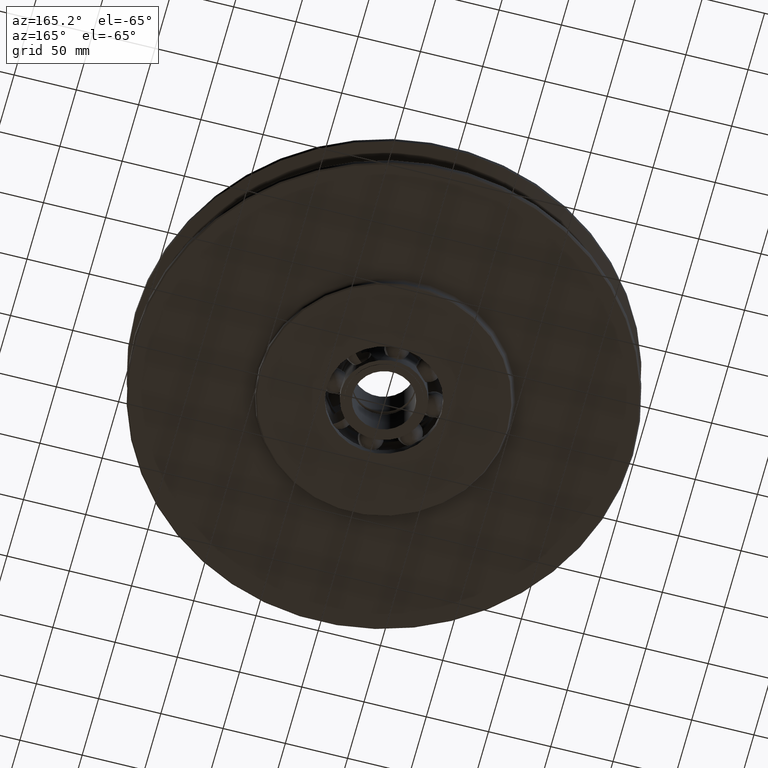
[diagram: clean part render]
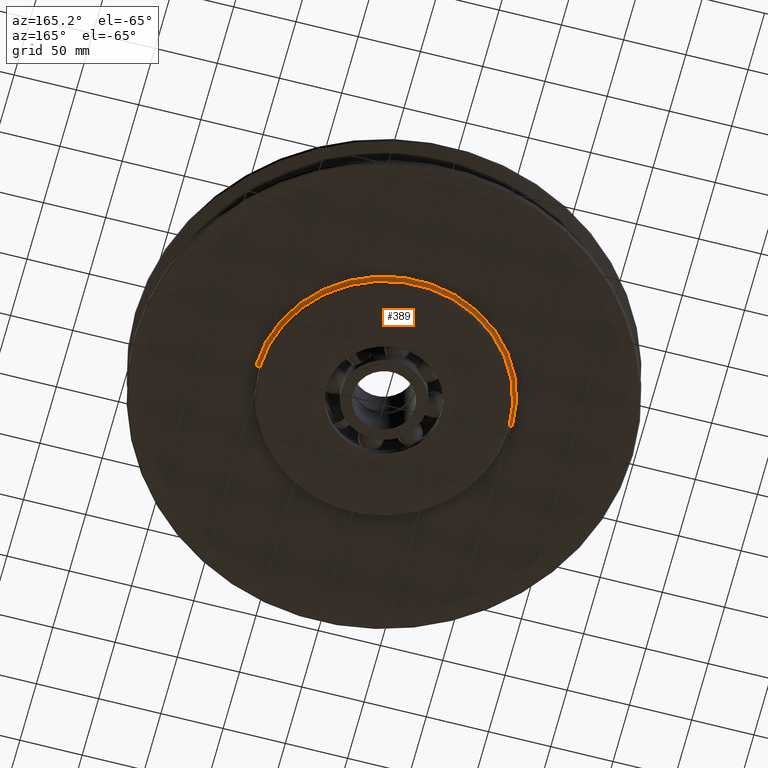
[diagram: same view with one face highlighted and labeled with its STEP entity id]
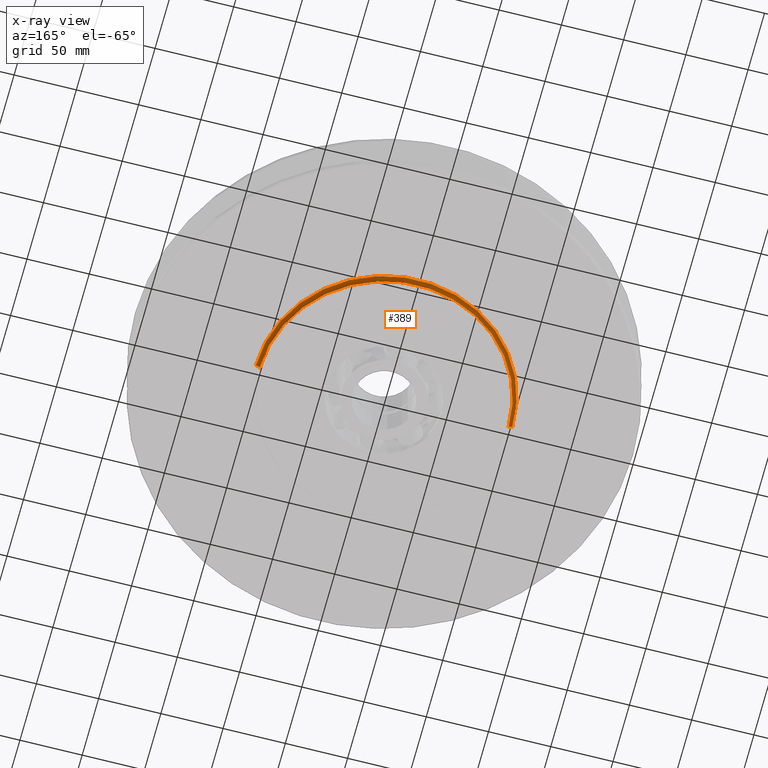
[diagram: x-ray of the same camera — body ghosted, the highlighted face saturated]
A machine part, auxiliary view. The second image highlights one B-rep face of the part: STEP entity #389.
The next image is the same camera in x-ray: the body ghosted, the highlighted face saturated — about 0% of this face is hidden behind the body in this view.
In plain terms, the highlighted toroidal blend (fillet) surface has major radius 103 mm and minor (blend) radius 3 mm.
Its self-contained STEP definition (entity closure, byte-faithful):
#389=ADVANCED_FACE('',(#801),#802,.F.);
#801=FACE_OUTER_BOUND('',#1211,.T.);
#802=TOROIDAL_SURFACE('',#1212,103.0,2.99999999999999);
#1211=EDGE_LOOP('',(#2507,#2508,#2509,#2510));
#1212=AXIS2_PLACEMENT_3D('',#2511,#2512,#2513);
#2507=ORIENTED_EDGE('',*,*,#2673,.T.);
#2508=ORIENTED_EDGE('',*,*,#3091,.F.);
#2509=ORIENTED_EDGE('',*,*,#2675,.T.);
#2510=ORIENTED_EDGE('',*,*,#2681,.T.);
#2511=CARTESIAN_POINT('',(0.0,0.0,-25.5));
#2512=DIRECTION('',(0.0,0.0,1.0));
#2513=DIRECTION('',(1.0,0.0,0.0));
#2673=EDGE_CURVE('',#3290,#3291,#3292,.T.);
#2675=EDGE_CURVE('',#3295,#3293,#3296,.T.);
#2681=EDGE_CURVE('',#3293,#3290,#3304,.T.);
#3091=EDGE_CURVE('',#3295,#3291,#3908,.T.);
#3290=VERTEX_POINT('',#5331);
#3291=VERTEX_POINT('',#5332);
#3292=CIRCLE('',#5333,2.99999999999999);
#3293=VERTEX_POINT('',#5334);
#3295=VERTEX_POINT('',#5336);
#3296=CIRCLE('',#5337,2.99999999999999);
#3304=CIRCLE('',#5347,100.0);
#3908=CIRCLE('',#9107,103.0);
#5331=CARTESIAN_POINT('',(-100.0,1.22464679914735E-014,-25.5));
#5332=CARTESIAN_POINT('',(-103.0,1.26138620312177E-014,-22.5));
#5333=AXIS2_PLACEMENT_3D('',#9264,#9265,#9266);
#5334=CARTESIAN_POINT('',(100.0,0.0,-25.5));
#5336=CARTESIAN_POINT('',(103.0,0.0,-22.5));
#5337=AXIS2_PLACEMENT_3D('',#9270,#9271,#9272);
#5347=AXIS2_PLACEMENT_3D('',#9281,#9282,#9283);
#9107=AXIS2_PLACEMENT_3D('',#9722,#9723,#9724);
#9264=CARTESIAN_POINT('',(-103.0,1.26138620312177E-014,-25.5));
#9265=DIRECTION('',(-1.22464679914735E-016,-1.0,0.0));
#9266=DIRECTION('',(-1.0,1.22464679914735E-016,-0.0));
#9270=CARTESIAN_POINT('',(103.0,-1.26138620312177E-014,-25.5));
#9271=DIRECTION('',(-1.22464679914735E-016,-1.0,0.0));
#9272=DIRECTION('',(1.0,-1.22464679914735E-016,0.0));
#9281=CARTESIAN_POINT('',(0.0,0.0,-25.5));
#9282=DIRECTION('',(0.0,0.0,1.0));
#9283=DIRECTION('',(1.0,0.0,0.0));
#9722=CARTESIAN_POINT('',(0.0,0.0,-22.5));
#9723=DIRECTION('',(0.0,0.0,1.0));
#9724=DIRECTION('',(1.0,0.0,0.0));